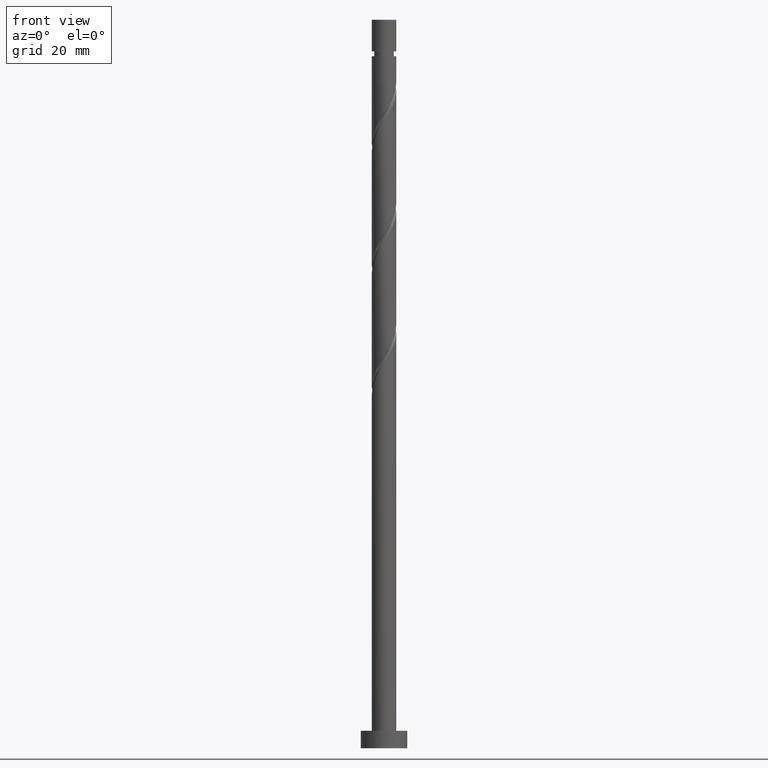
[diagram: clean part render]
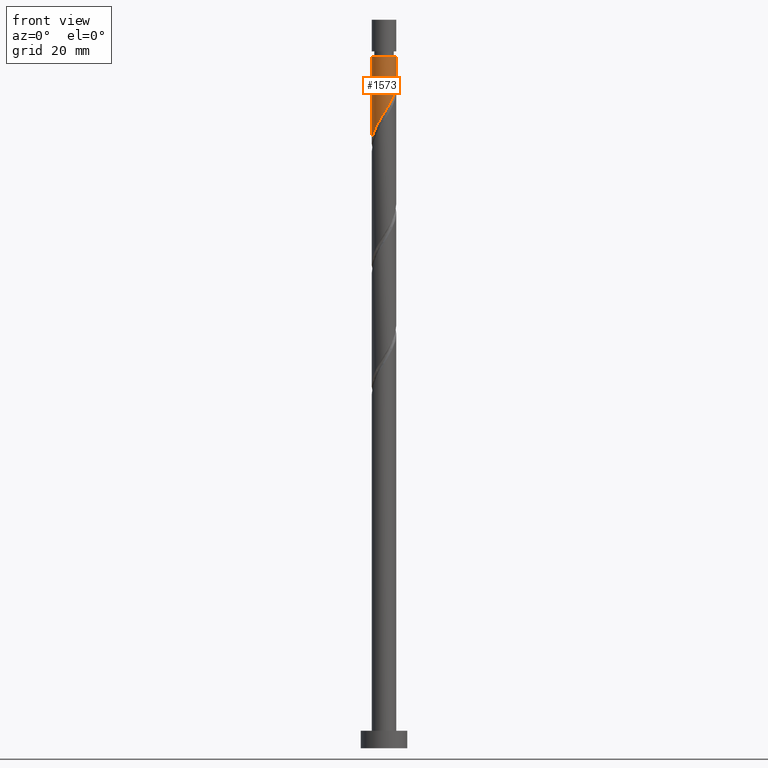
[diagram: same view with one face highlighted and labeled with its STEP entity id]
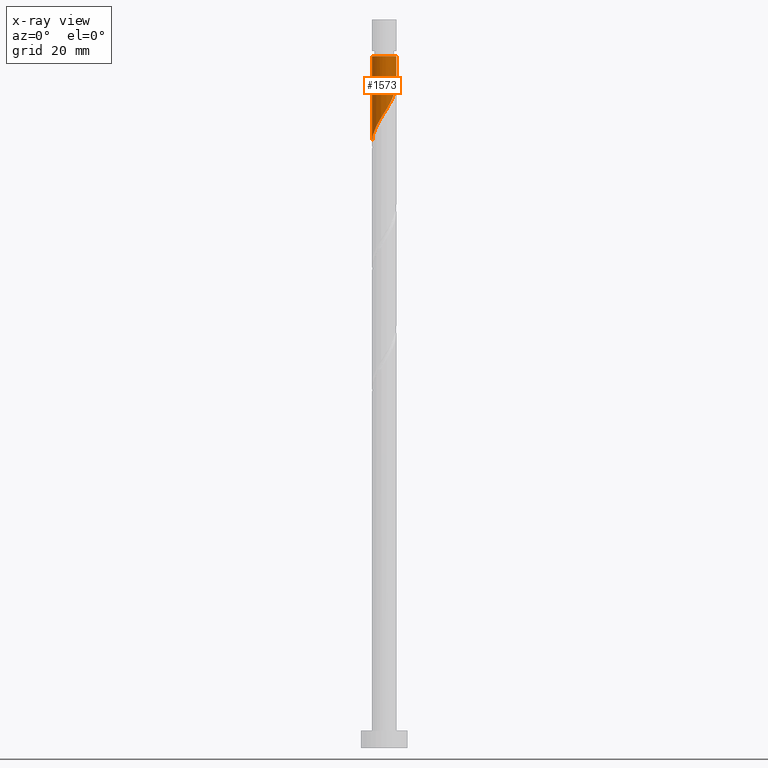
[diagram: x-ray of the same camera — body ghosted, the highlighted face saturated]
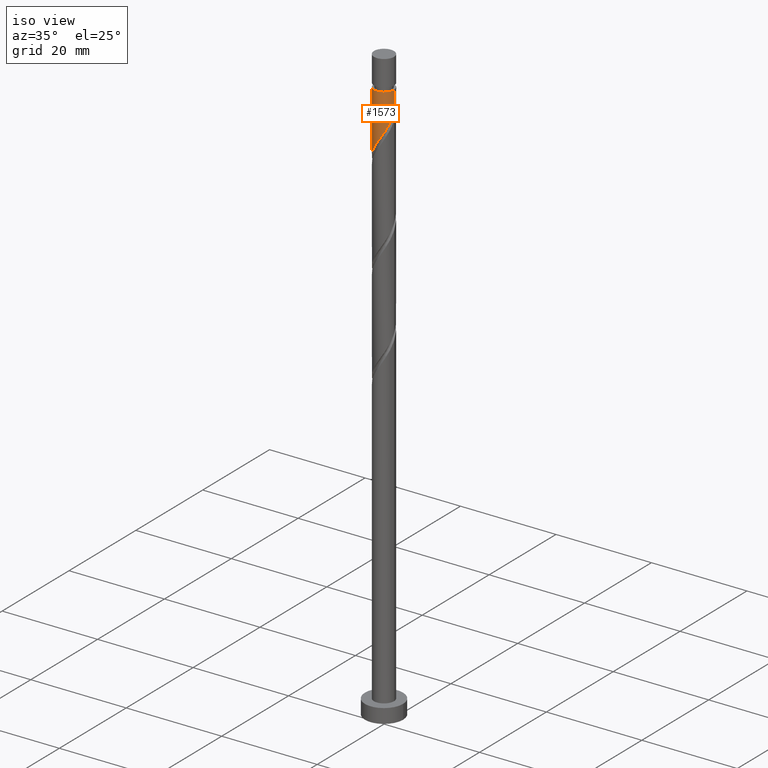
[diagram: same view with one face highlighted and labeled with its STEP entity id]
A machine part, front view. The second image highlights one B-rep face of the part: STEP entity #1573.
The next image is the same camera in x-ray: the body ghosted, the highlighted face saturated — about 0% of this face is hidden behind the body in this view.
A second angle (iso view) of the same face is appended — the face is thin or edge-on in the first view.
In plain terms, the highlighted cylindrical surface (edge-blend (fillet) strip) has radius 2.1 mm, axis along (-0, -0, -1).
Its self-contained STEP definition (entity closure, byte-faithful):
#8 = CARTESIAN_POINT ( 'NONE',  ( -2.048633742055936846, -0.5689704942628327489, 104.6717128102920356 ) ) ;
#67 = CYLINDRICAL_SURFACE ( 'NONE', #861, 2.100000000000000089 ) ;
#117 = DIRECTION ( 'NONE',  ( -0.000000000000000000, -0.000000000000000000, -1.000000000000000000 ) ) ;
#143 = EDGE_CURVE ( 'NONE', #152, #528, #963, .T. ) ;
#152 = VERTEX_POINT ( 'NONE', #1396 ) ;
#178 = DIRECTION ( 'NONE',  ( -0.000000000000000000, -0.000000000000000000, -1.000000000000000000 ) ) ;
#190 = CARTESIAN_POINT ( 'NONE',  ( 2.057999999999999829, -0.4178947235847813024, 113.5258794769586927 ) ) ;
#210 = CARTESIAN_POINT ( 'NONE',  ( 0.000000000000000000, 0.000000000000000000, 125.0000000000000000 ) ) ;
#239 =( BOUNDED_CURVE ( )  B_SPLINE_CURVE ( 2, ( #918, #704, #190, #449, #1415, #1184, #688, #324, #314, #1166, #1338, #869, #503, #488, #1233, #876, #973, #382, #1218, #8, #368, #1351, #863 ),
 .UNSPECIFIED., .F., .T. ) 
 B_SPLINE_CURVE_WITH_KNOTS ( ( 3, 2, 2, 2, 2, 2, 2, 2, 2, 2, 2, 3 ),
 ( 0.3045322023138550271, 0.3125000000000000000, 0.3250000000000000111, 0.3375000000000000222, 0.3499999999999999778, 0.3624999999999999889, 0.3750000000000000000, 0.3875000000000000111, 0.4000000000000000222, 0.4124999999999999778, 0.4249999999999999889, 0.4295322023138553047 ),
 .UNSPECIFIED. ) 
 CURVE ( )  GEOMETRIC_REPRESENTATION_ITEM ( )  RATIONAL_B_SPLINE_CURVE ( ( 0.9039174447099342924, 0.9019565955404633684, 0.9090909090909118362, 0.8978984914501279002, 0.9090909090909118362, 0.8978984914501279002, 0.9090909090909118362, 0.8978984914501279002, 0.9090909090909118362, 0.8978984914501279002, 0.9090909090909118362, 0.8978984914501279002, 0.9090909090909118362, 0.8978984914501279002, 0.9090909090909118362, 0.8978984914501279002, 0.9090909090909118362, 0.8978984914501279002, 0.9090909090909118362, 0.8978984914501279002, 0.9090909090909118362, 0.9050328050005761460, 0.9039174447099340703 ) ) 
 REPRESENTATION_ITEM ( '' )  );
#267 = VERTEX_POINT ( 'NONE', #1117 ) ;
#314 = CARTESIAN_POINT ( 'NONE',  ( 0.8715781159782007848, -1.910589329957615323, 110.4008794769587070 ) ) ;
#324 = CARTESIAN_POINT ( 'NONE',  ( 1.174185737693568932, -1.772544917859294689, 110.9217128102920498 ) ) ;
#368 = CARTESIAN_POINT ( 'NONE',  ( -2.086410881982744492, -0.2385154744329737175, 104.1508794769586785 ) ) ;
#375 = AXIS2_PLACEMENT_3D ( 'NONE', #891, #421, #1498 ) ;
#382 = CARTESIAN_POINT ( 'NONE',  ( -1.772544917859294467, -1.174185737693568932, 105.7133794769586927 ) ) ;
#417 = CARTESIAN_POINT ( 'NONE',  ( -2.100000000000000089, -1.019530989257995699E-15, 103.7740152517622789 ) ) ;
#421 = DIRECTION ( 'NONE',  ( -0.000000000000000000, -0.000000000000000000, -1.000000000000000000 ) ) ;
#449 = CARTESIAN_POINT ( 'NONE',  ( 1.991811978090447299, -0.7438499017726769580, 113.0050461436253784 ) ) ;
#488 = CARTESIAN_POINT ( 'NONE',  ( -0.7438499017726769580, -1.991811978090447299, 107.7967128102920498 ) ) ;
#503 = CARTESIAN_POINT ( 'NONE',  ( -0.4178947235847811914, -2.057999999999999829, 108.3175461436253499 ) ) ;
#528 = VERTEX_POINT ( 'NONE', #417 ) ;
#598 = CARTESIAN_POINT ( 'NONE',  ( -2.100000000000000089, 0.000000000000000000, 125.0000000000000000 ) ) ;
#688 = CARTESIAN_POINT ( 'NONE',  ( 1.419324618889667766, -1.547745982457618963, 111.4425461436253642 ) ) ;
#704 = CARTESIAN_POINT ( 'NONE',  ( 2.100000000000000533, -0.2110579412044317205, 113.8563773430211086 ) ) ;
#761 = DIRECTION ( 'NONE',  ( -0.000000000000000000, -0.000000000000000000, -1.000000000000000000 ) ) ;
#803 = ORIENTED_EDGE ( 'NONE', *, *, #835, .T. ) ;
#835 = EDGE_CURVE ( 'NONE', #267, #152, #1001, .T. ) ;
#861 = AXIS2_PLACEMENT_3D ( 'NONE', #210, #178, #916 ) ;
#863 = CARTESIAN_POINT ( 'NONE',  ( -2.100000000000000089, -1.019530989257995699E-15, 103.7740152517622789 ) ) ;
#869 = CARTESIAN_POINT ( 'NONE',  ( -0.09193954539688566074, -2.124188021909552582, 108.8383794769587070 ) ) ;
#876 = CARTESIAN_POINT ( 'NONE',  ( -1.322947047055942793, -1.664463500085766823, 106.7550461436253642 ) ) ;
#880 = LINE ( 'NONE', #901, #1288 ) ;
#891 = CARTESIAN_POINT ( 'NONE',  ( 0.000000000000000000, 0.000000000000000000, 118.7342128102920213 ) ) ;
#901 = CARTESIAN_POINT ( 'NONE',  ( 2.100000000000000089, 2.571758278209441464E-16, 125.0000000000000000 ) ) ;
#916 = DIRECTION ( 'NONE',  ( -1.000000000000000000, 0.000000000000000000, 0.000000000000000000 ) ) ;
#918 = CARTESIAN_POINT ( 'NONE',  ( 2.100000000000000089, 7.346620363770851157E-16, 114.1906819184289503 ) ) ;
#963 = LINE ( 'NONE', #598, #1533 ) ;
#973 = CARTESIAN_POINT ( 'NONE',  ( -1.547745982457618963, -1.419324618889667766, 106.2342128102920213 ) ) ;
#1001 = CIRCLE ( 'NONE', #375, 2.099999999999998757 ) ;
#1036 = ORIENTED_EDGE ( 'NONE', *, *, #1111, .F. ) ;
#1111 = EDGE_CURVE ( 'NONE', #1407, #528, #239, .T. ) ;
#1117 = CARTESIAN_POINT ( 'NONE',  ( 2.099999999999998757, 2.571758278209440478E-16, 118.7342128102920213 ) ) ;
#1166 = CARTESIAN_POINT ( 'NONE',  ( 0.5689704942628324158, -2.048633742055936846, 109.8800461436253784 ) ) ;
#1184 = CARTESIAN_POINT ( 'NONE',  ( 1.664463500085766823, -1.322947047055943237, 111.9633794769586927 ) ) ;
#1218 = CARTESIAN_POINT ( 'NONE',  ( -1.910589329957615323, -0.8715781159782007848, 105.1925461436253784 ) ) ;
#1233 = CARTESIAN_POINT ( 'NONE',  ( -1.033398474414309876, -1.828137739088107505, 107.2758794769586643 ) ) ;
#1288 = VECTOR ( 'NONE', #761, 1000.000000000000000 ) ;
#1289 = ORIENTED_EDGE ( 'NONE', *, *, #143, .T. ) ;
#1303 = FACE_OUTER_BOUND ( 'NONE', #1518, .T. ) ;
#1313 = ORIENTED_EDGE ( 'NONE', *, *, #1333, .F. ) ;
#1333 = EDGE_CURVE ( 'NONE', #267, #1407, #880, .T. ) ;
#1338 = CARTESIAN_POINT ( 'NONE',  ( 0.2385154744329734677, -2.086410881982744492, 109.3592128102920071 ) ) ;
#1351 = CARTESIAN_POINT ( 'NONE',  ( -2.100000000000000533, -0.1196448486375048248, 103.9635263409695511 ) ) ;
#1370 = CARTESIAN_POINT ( 'NONE',  ( 2.100000000000000089, 7.346620363770850171E-16, 114.1906819184289645 ) ) ;
#1396 = CARTESIAN_POINT ( 'NONE',  ( -2.099999999999998757, 0.000000000000000000, 118.7342128102920213 ) ) ;
#1407 = VERTEX_POINT ( 'NONE', #1370 ) ;
#1415 = CARTESIAN_POINT ( 'NONE',  ( 1.828137739088107505, -1.033398474414310098, 112.4842128102920071 ) ) ;
#1498 = DIRECTION ( 'NONE',  ( -1.000000000000000000, 0.000000000000000000, 0.000000000000000000 ) ) ;
#1518 = EDGE_LOOP ( 'NONE', ( #1313, #803, #1289, #1036 ) ) ;
#1533 = VECTOR ( 'NONE', #117, 1000.000000000000000 ) ;
#1573 = ADVANCED_FACE ( 'NONE', ( #1303 ), #67, .T. ) ;